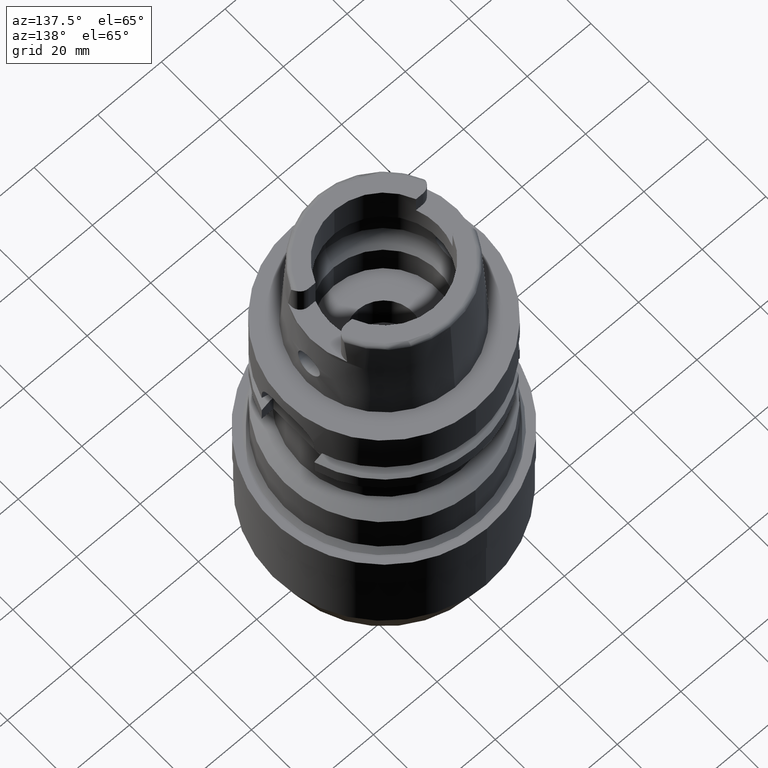
[diagram: clean part render]
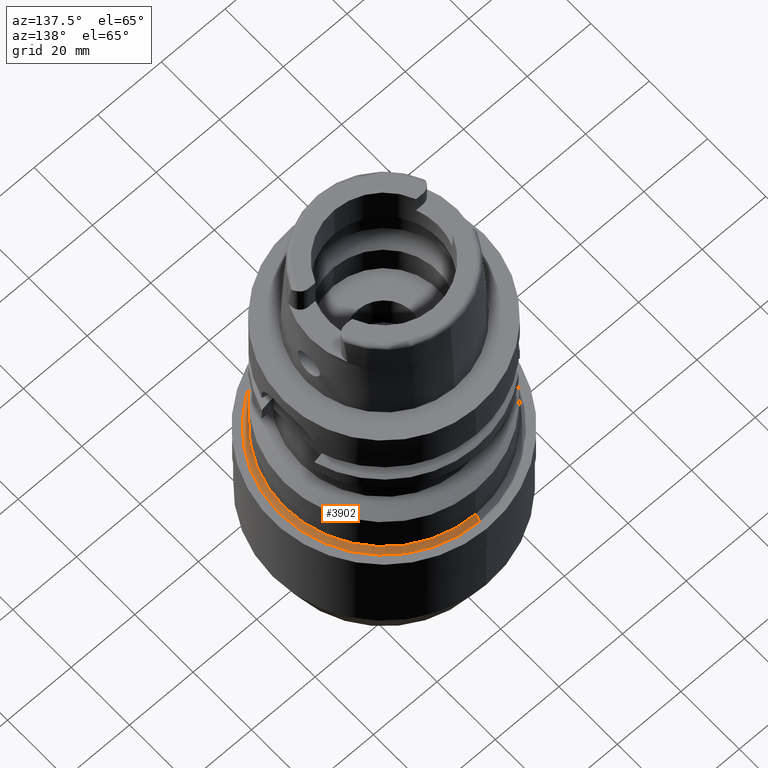
[diagram: same view with one face highlighted and labeled with its STEP entity id]
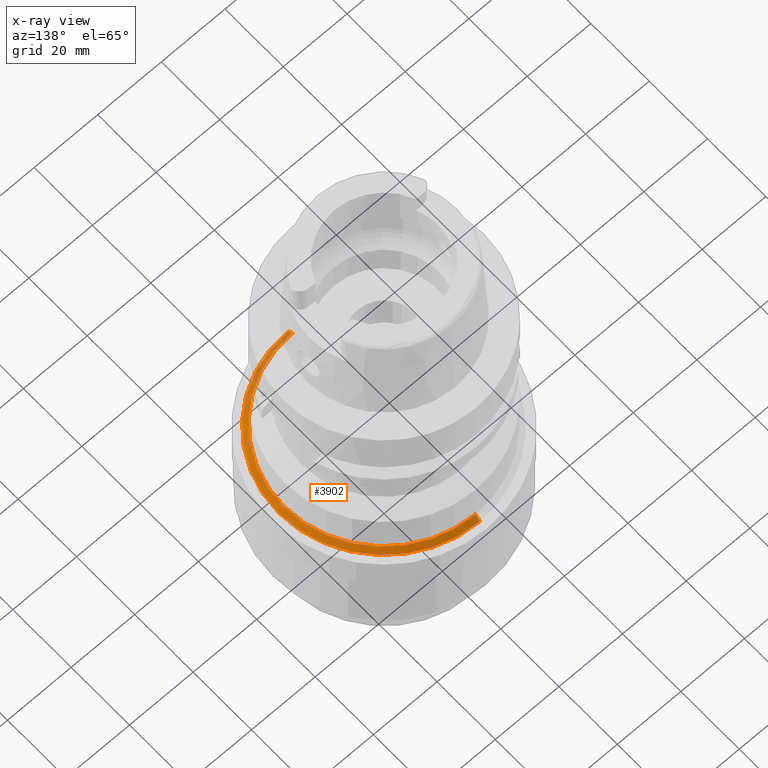
[diagram: x-ray of the same camera — body ghosted, the highlighted face saturated]
A machine part, auxiliary view. The second image highlights one B-rep face of the part: STEP entity #3902.
The next image is the same camera in x-ray: the body ghosted, the highlighted face saturated — about 11% of this face is hidden behind the body in this view.
In plain terms, the highlighted conical surface has half-angle 45 deg.
Its self-contained STEP definition (entity closure, byte-faithful):
#1710=DIRECTION('',(0.E0,7.071067811866E-1,-7.071067811865E-1));
#1711=VECTOR('',#1710,2.121320343560E0);
#1712=CARTESIAN_POINT('',(0.E0,3.14E1,-5.83E1));
#1713=LINE('',#1712,#1711);
#1717=CARTESIAN_POINT('',(0.E0,0.E0,-5.83E1));
#1718=DIRECTION('',(0.E0,0.E0,1.E0));
#1719=DIRECTION('',(0.E0,-1.E0,0.E0));
#1720=AXIS2_PLACEMENT_3D('',#1717,#1718,#1719);
#1733=DIRECTION('',(0.E0,-7.071067811866E-1,-7.071067811865E-1));
#1734=VECTOR('',#1733,2.121320343560E0);
#1735=CARTESIAN_POINT('',(0.E0,-3.14E1,-5.83E1));
#1736=LINE('',#1735,#1734);
#1756=CARTESIAN_POINT('',(0.E0,0.E0,-5.98E1));
#1757=DIRECTION('',(0.E0,0.E0,1.E0));
#1758=DIRECTION('',(0.E0,-1.E0,0.E0));
#1759=AXIS2_PLACEMENT_3D('',#1756,#1757,#1758);
#2564=CARTESIAN_POINT('',(0.E0,-3.29E1,-5.98E1));
#2565=CARTESIAN_POINT('',(0.E0,3.29E1,-5.98E1));
#2566=VERTEX_POINT('',#2564);
#2567=VERTEX_POINT('',#2565);
#2568=CARTESIAN_POINT('',(0.E0,3.14E1,-5.83E1));
#2569=VERTEX_POINT('',#2568);
#2570=CARTESIAN_POINT('',(0.E0,-3.14E1,-5.83E1));
#2571=VERTEX_POINT('',#2570);
#3888=CARTESIAN_POINT('',(0.E0,0.E0,-5.905E1));
#3889=DIRECTION('',(0.E0,0.E0,-1.E0));
#3890=DIRECTION('',(0.E0,-1.E0,0.E0));
#3891=AXIS2_PLACEMENT_3D('',#3888,#3889,#3890);
#3892=CONICAL_SURFACE('',#3891,3.215E1,4.5E1);
#3894=ORIENTED_EDGE('',*,*,#3893,.T.);
#3896=ORIENTED_EDGE('',*,*,#3895,.F.);
#3898=ORIENTED_EDGE('',*,*,#3897,.F.);
#3899=ORIENTED_EDGE('',*,*,#3881,.T.);
#3900=EDGE_LOOP('',(#3894,#3896,#3898,#3899));
#3901=FACE_OUTER_BOUND('',#3900,.F.);
#1721=CIRCLE('',#1720,3.14E1);
#1760=CIRCLE('',#1759,3.29E1);
#3881=EDGE_CURVE('',#2571,#2569,#1721,.T.);
#3893=EDGE_CURVE('',#2569,#2567,#1713,.T.);
#3895=EDGE_CURVE('',#2566,#2567,#1760,.T.);
#3897=EDGE_CURVE('',#2571,#2566,#1736,.T.);
#3902=ADVANCED_FACE('',(#3901),#3892,.T.);